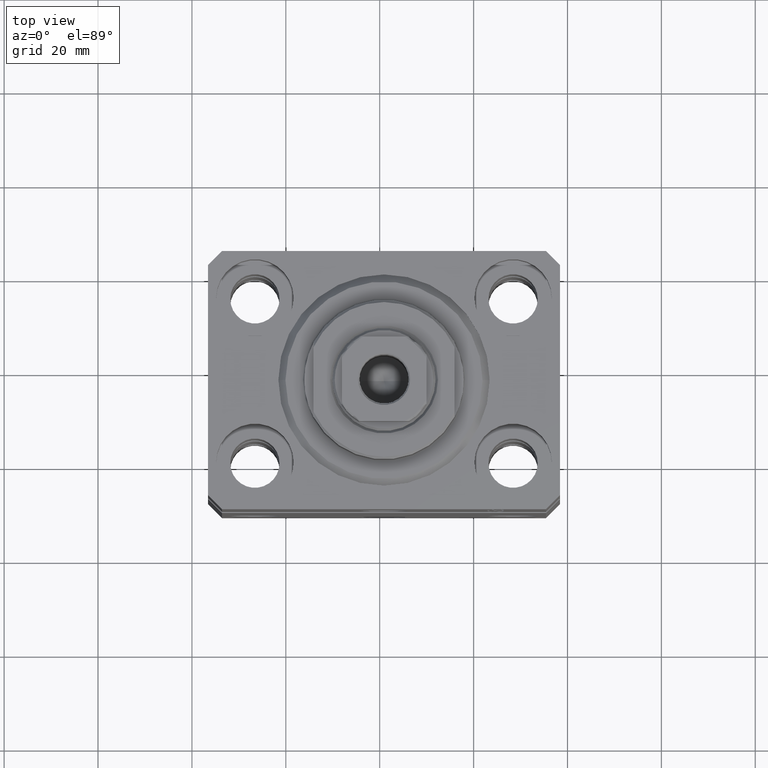
[diagram: clean part render]
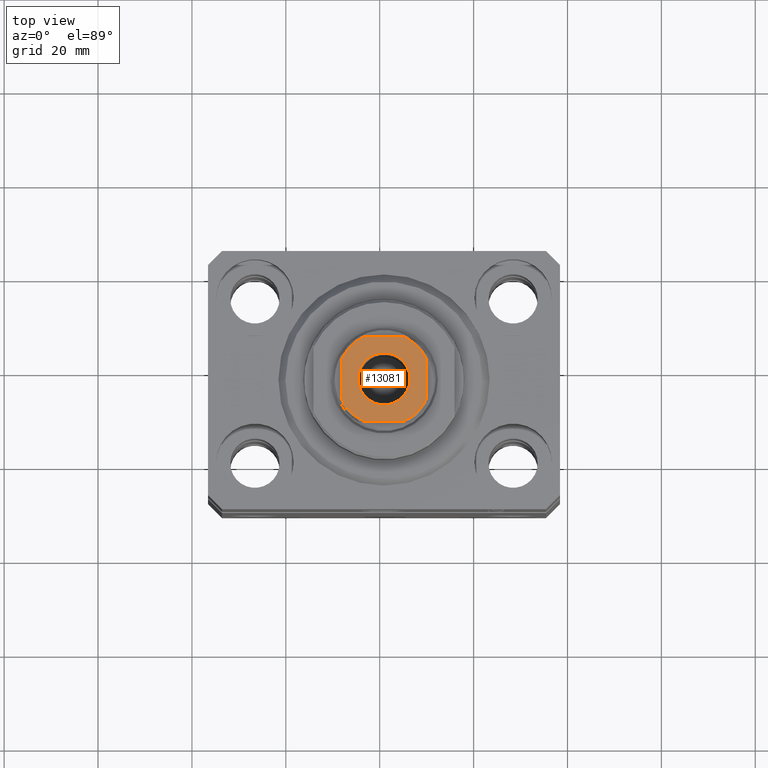
[diagram: same view with one face highlighted and labeled with its STEP entity id]
A machine part, top view. The second image highlights one B-rep face of the part: STEP entity #13081.
In plain terms, the highlighted planar face has unit normal (0, 0, 1).
Its self-contained STEP definition (entity closure, byte-faithful):
#74 = EDGE_CURVE ( 'NONE', #20344, #43905, #27714, .T. ) ;
#1400 = DIRECTION ( 'NONE',  ( 0.000000000000000000, -0.000000000000000000, -1.000000000000000000 ) ) ;
#1419 = VERTEX_POINT ( 'NONE', #34624 ) ;
#2236 = FACE_OUTER_BOUND ( 'NONE', #28233, .T. ) ;
#2872 = LINE ( 'NONE', #19761, #31060 ) ;
#3552 = DIRECTION ( 'NONE',  ( 1.000000000000000000, 0.000000000000000000, 0.000000000000000000 ) ) ;
#5079 = ORIENTED_EDGE ( 'NONE', *, *, #25232, .T. ) ;
#6263 = CIRCLE ( 'NONE', #14284, 10.00000000000000000 ) ;
#7455 = AXIS2_PLACEMENT_3D ( 'NONE', #35264, #1400, #3552 ) ;
#7555 = CIRCLE ( 'NONE', #36709, 10.00000000000000000 ) ;
#7932 = DIRECTION ( 'NONE',  ( 1.000000000000000000, 0.000000000000000000, 0.000000000000000000 ) ) ;
#7939 = EDGE_CURVE ( 'NONE', #11252, #1419, #14002, .T. ) ;
#7991 = EDGE_CURVE ( 'NONE', #43905, #20344, #11821, .T. ) ;
#8042 = AXIS2_PLACEMENT_3D ( 'NONE', #18427, #25278, #7932 ) ;
#8403 = EDGE_CURVE ( 'NONE', #21095, #33830, #29410, .T. ) ;
#9861 = CIRCLE ( 'NONE', #28091, 10.00000000000000000 ) ;
#10149 = DIRECTION ( 'NONE',  ( 1.000000000000000000, 0.000000000000000000, 0.000000000000000000 ) ) ;
#11252 = VERTEX_POINT ( 'NONE', #41054 ) ;
#11601 = EDGE_CURVE ( 'NONE', #23712, #31467, #7555, .T. ) ;
#11821 = CIRCLE ( 'NONE', #7455, 5.549999999999985612 ) ;
#13081 = ADVANCED_FACE ( 'NONE', ( #13175, #2236 ), #19361, .T. ) ;
#13175 = FACE_BOUND ( 'NONE', #34033, .T. ) ;
#14002 = CIRCLE ( 'NONE', #43160, 10.00000000000000000 ) ;
#14284 = AXIS2_PLACEMENT_3D ( 'NONE', #17768, #14564, #27815 ) ;
#14564 = DIRECTION ( 'NONE',  ( -0.000000000000000000, 0.000000000000000000, 1.000000000000000000 ) ) ;
#15096 = CARTESIAN_POINT ( 'NONE',  ( -9.000000000000000000, 8.999999999999998224, 115.1000000000000085 ) ) ;
#15311 = LINE ( 'NONE', #15096, #36930 ) ;
#15536 = DIRECTION ( 'NONE',  ( -1.000000000000000000, -0.000000000000000000, -0.000000000000000000 ) ) ;
#15619 = EDGE_CURVE ( 'NONE', #43941, #21095, #9861, .T. ) ;
#16145 = CARTESIAN_POINT ( 'NONE',  ( 0.000000000000000000, 0.000000000000000000, 115.1000000000000085 ) ) ;
#17019 = DIRECTION ( 'NONE',  ( 1.000000000000000000, 0.000000000000000000, 0.000000000000000000 ) ) ;
#17768 = CARTESIAN_POINT ( 'NONE',  ( 0.000000000000000000, 0.000000000000000000, 115.1000000000000085 ) ) ;
#18391 = EDGE_CURVE ( 'NONE', #1419, #43941, #2872, .T. ) ;
#18427 = CARTESIAN_POINT ( 'NONE',  ( 0.000000000000000000, 0.000000000000000000, 115.1000000000000085 ) ) ;
#18649 = CARTESIAN_POINT ( 'NONE',  ( 4.358898943540677529, 8.999999999999998224, 115.1000000000000085 ) ) ;
#19217 = CARTESIAN_POINT ( 'NONE',  ( 9.000000000000001776, -4.358898943540675752, 115.1000000000000085 ) ) ;
#19361 = PLANE ( 'NONE',  #34552 ) ;
#19761 = CARTESIAN_POINT ( 'NONE',  ( -8.999999999999998224, -9.000000000000001776, 115.1000000000000085 ) ) ;
#19856 = VECTOR ( 'NONE', #29633, 1000.000000000000000 ) ;
#20344 = VERTEX_POINT ( 'NONE', #35551 ) ;
#20828 = ORIENTED_EDGE ( 'NONE', *, *, #18391, .T. ) ;
#21095 = VERTEX_POINT ( 'NONE', #19217 ) ;
#21427 = EDGE_CURVE ( 'NONE', #33830, #26153, #6263, .T. ) ;
#22054 = ORIENTED_EDGE ( 'NONE', *, *, #7991, .T. ) ;
#22736 = CARTESIAN_POINT ( 'NONE',  ( 0.000000000000000000, 0.000000000000000000, 115.1000000000000085 ) ) ;
#22955 = ORIENTED_EDGE ( 'NONE', *, *, #8403, .T. ) ;
#23077 = EDGE_CURVE ( 'NONE', #26153, #23712, #15311, .T. ) ;
#23712 = VERTEX_POINT ( 'NONE', #29948 ) ;
#23989 = CARTESIAN_POINT ( 'NONE',  ( 9.000000000000000000, 4.358898943540675752, 115.1000000000000085 ) ) ;
#24831 = ORIENTED_EDGE ( 'NONE', *, *, #21427, .T. ) ;
#25232 = EDGE_CURVE ( 'NONE', #31467, #11252, #43060, .T. ) ;
#25278 = DIRECTION ( 'NONE',  ( 0.000000000000000000, -0.000000000000000000, -1.000000000000000000 ) ) ;
#25478 = DIRECTION ( 'NONE',  ( 9.637352644315595243E-17, -1.000000000000000000, 0.000000000000000000 ) ) ;
#25928 = ORIENTED_EDGE ( 'NONE', *, *, #7939, .T. ) ;
#26153 = VERTEX_POINT ( 'NONE', #18649 ) ;
#27093 = DIRECTION ( 'NONE',  ( -0.000000000000000000, 0.000000000000000000, 1.000000000000000000 ) ) ;
#27714 = CIRCLE ( 'NONE', #8042, 5.549999999999985612 ) ;
#27729 = DIRECTION ( 'NONE',  ( -0.000000000000000000, 0.000000000000000000, 1.000000000000000000 ) ) ;
#27815 = DIRECTION ( 'NONE',  ( 1.000000000000000000, 0.000000000000000000, 0.000000000000000000 ) ) ;
#28091 = AXIS2_PLACEMENT_3D ( 'NONE', #22736, #43525, #40527 ) ;
#28233 = EDGE_LOOP ( 'NONE', ( #5079, #25928, #20828, #37756, #22955, #24831, #40826, #42235 ) ) ;
#29410 = LINE ( 'NONE', #36264, #19856 ) ;
#29633 = DIRECTION ( 'NONE',  ( -9.637352644315595243E-17, 1.000000000000000000, -0.000000000000000000 ) ) ;
#29948 = CARTESIAN_POINT ( 'NONE',  ( -4.358898943540678417, 8.999999999999998224, 115.1000000000000085 ) ) ;
#30436 = DIRECTION ( 'NONE',  ( -0.000000000000000000, 0.000000000000000000, 1.000000000000000000 ) ) ;
#31060 = VECTOR ( 'NONE', #17019, 1000.000000000000000 ) ;
#31467 = VERTEX_POINT ( 'NONE', #38210 ) ;
#32556 = CARTESIAN_POINT ( 'NONE',  ( -9.000000000000000000, 8.999999999999998224, 115.1000000000000085 ) ) ;
#33276 = DIRECTION ( 'NONE',  ( 1.000000000000000000, 0.000000000000000000, 0.000000000000000000 ) ) ;
#33830 = VERTEX_POINT ( 'NONE', #23989 ) ;
#34033 = EDGE_LOOP ( 'NONE', ( #44261, #22054 ) ) ;
#34552 = AXIS2_PLACEMENT_3D ( 'NONE', #16145, #27093, #33276 ) ;
#34557 = CARTESIAN_POINT ( 'NONE',  ( 0.000000000000000000, 0.000000000000000000, 115.1000000000000085 ) ) ;
#34624 = CARTESIAN_POINT ( 'NONE',  ( -4.358898943540671311, -9.000000000000001776, 115.1000000000000085 ) ) ;
#34813 = CARTESIAN_POINT ( 'NONE',  ( 0.000000000000000000, 0.000000000000000000, 115.1000000000000085 ) ) ;
#35013 = CARTESIAN_POINT ( 'NONE',  ( 4.358898943540671311, -9.000000000000001776, 115.1000000000000085 ) ) ;
#35264 = CARTESIAN_POINT ( 'NONE',  ( 0.000000000000000000, 0.000000000000000000, 115.1000000000000085 ) ) ;
#35551 = CARTESIAN_POINT ( 'NONE',  ( 5.549999999999985612, 0.000000000000000000, 115.1000000000000085 ) ) ;
#35833 = CARTESIAN_POINT ( 'NONE',  ( -5.549999999999985612, 6.796789735267793031E-16, 115.1000000000000085 ) ) ;
#36264 = CARTESIAN_POINT ( 'NONE',  ( 9.000000000000000000, 8.999999999999998224, 115.1000000000000085 ) ) ;
#36709 = AXIS2_PLACEMENT_3D ( 'NONE', #34557, #30436, #10149 ) ;
#36930 = VECTOR ( 'NONE', #15536, 1000.000000000000000 ) ;
#37756 = ORIENTED_EDGE ( 'NONE', *, *, #15619, .T. ) ;
#38210 = CARTESIAN_POINT ( 'NONE',  ( -9.000000000000000000, 4.358898943540674864, 115.1000000000000085 ) ) ;
#38238 = DIRECTION ( 'NONE',  ( 1.000000000000000000, 0.000000000000000000, 0.000000000000000000 ) ) ;
#40527 = DIRECTION ( 'NONE',  ( 1.000000000000000000, 0.000000000000000000, 0.000000000000000000 ) ) ;
#40826 = ORIENTED_EDGE ( 'NONE', *, *, #23077, .T. ) ;
#41054 = CARTESIAN_POINT ( 'NONE',  ( -9.000000000000000000, -4.358898943540675752, 115.1000000000000085 ) ) ;
#42073 = VECTOR ( 'NONE', #25478, 1000.000000000000000 ) ;
#42235 = ORIENTED_EDGE ( 'NONE', *, *, #11601, .T. ) ;
#43060 = LINE ( 'NONE', #32556, #42073 ) ;
#43160 = AXIS2_PLACEMENT_3D ( 'NONE', #34813, #27729, #38238 ) ;
#43525 = DIRECTION ( 'NONE',  ( -0.000000000000000000, 0.000000000000000000, 1.000000000000000000 ) ) ;
#43905 = VERTEX_POINT ( 'NONE', #35833 ) ;
#43941 = VERTEX_POINT ( 'NONE', #35013 ) ;
#44261 = ORIENTED_EDGE ( 'NONE', *, *, #74, .T. ) ;